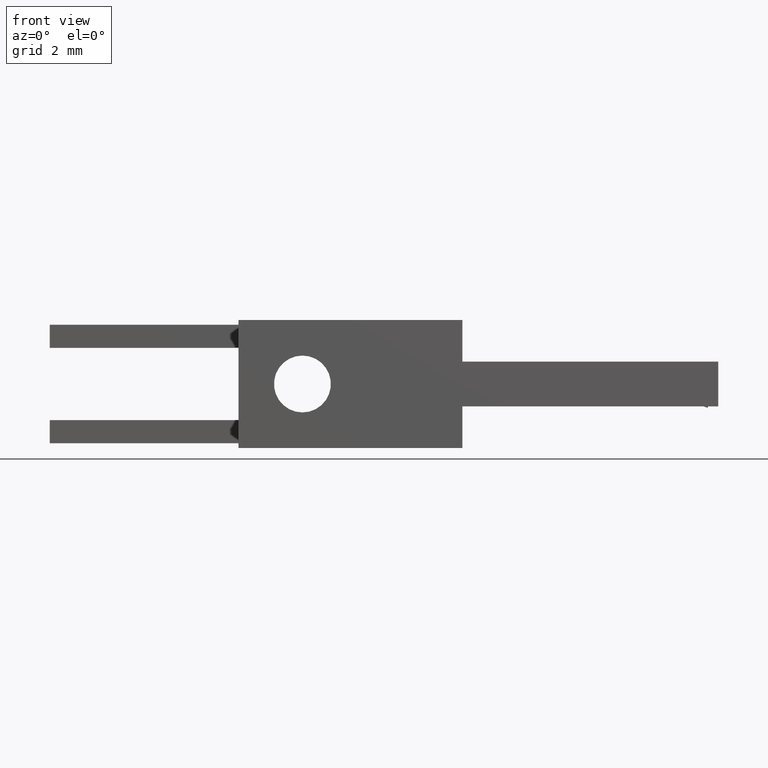
[diagram: clean part render]
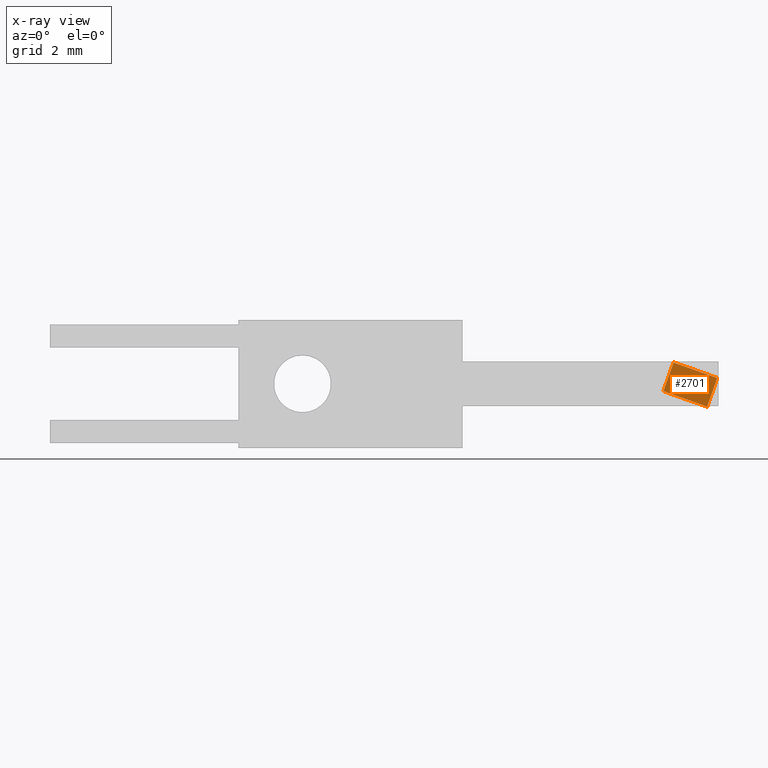
[diagram: x-ray — body ghosted, one internal face saturated and labeled with its STEP entity id]
A machine part, front view, then the same camera in x-ray: the body is ghosted and one INTERNAL B-rep face — a face not visible from any outside direction — is saturated and labeled: STEP entity #2701.
In plain terms, the highlighted planar face has unit normal (-0, 1, -0).
Its self-contained STEP definition (entity closure, byte-faithful):
#730 = FACE_OUTER_BOUND ( 'NONE', #2702, .T. ) ;
#780 = CARTESIAN_POINT ( 'NONE',  ( 1.734723475976807100E-014, -4.163336342344337000E-014, 1.000000000000000000 ) ) ;
#785 = DIRECTION ( 'NONE',  ( 2.220446049250307700E-016, 6.691153707494274800E-016, 1.000000000000000000 ) ) ;
#790 = DIRECTION ( 'NONE',  ( 4.542807102714217400E-017, 1.000000000000000000, -6.691153707494274800E-016 ) ) ;
#792 = PLANE ( 'NONE',  #793 ) ;
#793 = AXIS2_PLACEMENT_3D ( 'NONE', #780, #790, #785 ) ;
#1123 = VECTOR ( 'NONE', #1139, 1000.000000000000000 ) ;
#1124 = CARTESIAN_POINT ( 'NONE',  ( 0.02500000000001459400, 0.0000000000000000000, 1.000000000000000900 ) ) ;
#1128 = LINE ( 'NONE', #1124, #1123 ) ;
#1129 = CARTESIAN_POINT ( 'NONE',  ( 0.02500000000000939000, 0.0000000000000000000, 0.9749999999999932100 ) ) ;
#1139 = DIRECTION ( 'NONE',  ( -2.220446049250308600E-016, -6.691153707494276800E-016, -1.000000000000000000 ) ) ;
#1158 = CARTESIAN_POINT ( 'NONE',  ( 6.938893903907228400E-015, 0.0000000000000000000, 0.9750000000000045300 ) ) ;
#1159 = CARTESIAN_POINT ( 'NONE',  ( 0.02500000000000765500, -4.163336342344337000E-014, 0.02500000000000071600 ) ) ;
#1160 = DIRECTION ( 'NONE',  ( -1.000000000000000000, -4.548228113576686200E-017, -2.220446049250310600E-016 ) ) ;
#1161 = VECTOR ( 'NONE', #1160, 1000.000000000000000 ) ;
#1166 = VECTOR ( 'NONE', #1191, 1000.000000000000000 ) ;
#1169 = CARTESIAN_POINT ( 'NONE',  ( 1.475000000000009200, -4.163336342344337000E-014, 1.000000000000003600 ) ) ;
#1171 = LINE ( 'NONE', #1169, #1166 ) ;
#1190 = CARTESIAN_POINT ( 'NONE',  ( 1.475000000000023200, -6.938893903907228400E-015, 0.02500000000000418600 ) ) ;
#1191 = DIRECTION ( 'NONE',  ( -1.110223024625154100E-016, 6.691695808580518600E-016, 1.000000000000000000 ) ) ;
#1198 = LINE ( 'NONE', #1158, #1161 ) ;
#1203 = CARTESIAN_POINT ( 'NONE',  ( 1.475000000000000500, -4.163336342344337000E-014, 0.9749999999999993100 ) ) ;
#1281 = CARTESIAN_POINT ( 'NONE',  ( 6.938893903907228400E-015, 0.0000000000000000000, 0.02500000000000071600 ) ) ;
#1282 = LINE ( 'NONE', #1281, #1286 ) ;
#1285 = DIRECTION ( 'NONE',  ( 1.000000000000000000, 4.548228113576686200E-017, 2.220446049250310600E-016 ) ) ;
#1286 = VECTOR ( 'NONE', #1285, 1000.000000000000000 ) ;
#1984 = EDGE_CURVE ( 'NONE', #1985, #2003, #1128, .T. ) ;
#1985 = VERTEX_POINT ( 'NONE', #1129 ) ;
#2003 = VERTEX_POINT ( 'NONE', #1159 ) ;
#2005 = EDGE_CURVE ( 'NONE', #2006, #1985, #1198, .T. ) ;
#2006 = VERTEX_POINT ( 'NONE', #1203 ) ;
#2008 = EDGE_CURVE ( 'NONE', #2009, #2006, #1171, .T. ) ;
#2009 = VERTEX_POINT ( 'NONE', #1190 ) ;
#2028 = EDGE_CURVE ( 'NONE', #2003, #2009, #1282, .T. ) ;
#2701 = ADVANCED_FACE ( 'NONE', ( #730 ), #792, .F. ) ;
#2702 = EDGE_LOOP ( 'NONE', ( #2703, #2704, #2705, #2706 ) ) ;
#2703 = ORIENTED_EDGE ( 'NONE', *, *, #2005, .T. ) ;
#2704 = ORIENTED_EDGE ( 'NONE', *, *, #1984, .T. ) ;
#2705 = ORIENTED_EDGE ( 'NONE', *, *, #2028, .T. ) ;
#2706 = ORIENTED_EDGE ( 'NONE', *, *, #2008, .T. ) ;